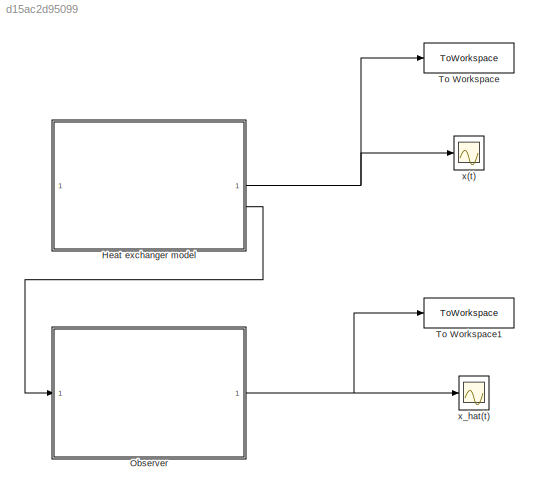
MODEL slx_d15ac2d95099
KIND model
CONFIG AbsTol = auto
CONFIG EnableMultiTasking = off
CONFIG FixedStep = 0.01
CONFIG MaxStep = auto
CONFIG MinStep = auto
CONFIG RelTol = 1e-3
CONFIG SampleTimeConstraint = Unconstrained
CONFIG SolverName = ode3
CONFIG StartTime = 0.0
CONFIG StopTime = 100
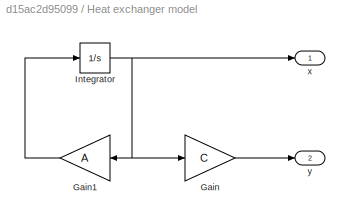
BLOCK [SubSystem] Heat exchanger model
BLOCK [Gain] Heat exchanger model/Gain
  Gain = C
  Multiplication = Matrix(K*u) (u vector)
BLOCK [Gain] Heat exchanger model/Gain1
  Gain = A
  Multiplication = Matrix(K*u) (u vector)
BLOCK [Integrator] Heat exchanger model/Integrator
  InitialCondition = randi(20,dim,1)
BLOCK [Outport] Heat exchanger model/x
BLOCK [Outport] Heat exchanger model/y
  Port = 2
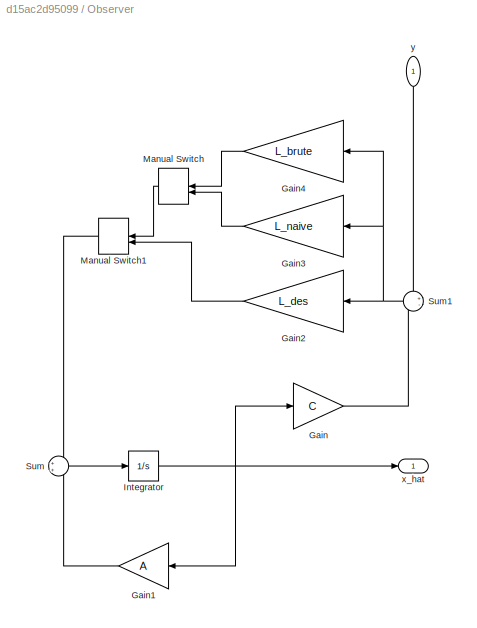
BLOCK [SubSystem] Observer
BLOCK [Gain] Observer/Gain
  Gain = C
  Multiplication = Matrix(K*u) (u vector)
BLOCK [Gain] Observer/Gain1
  Gain = A
  Multiplication = Matrix(K*u) (u vector)
BLOCK [Gain] Observer/Gain2
  Gain = L_des
  Multiplication = Matrix(K*u) (u vector)
BLOCK [Gain] Observer/Gain3
  Gain = L_naive
  Multiplication = Matrix(K*u) (u vector)
BLOCK [Gain] Observer/Gain4
  Gain = L_brute
  Multiplication = Matrix(K*u) (u vector)
BLOCK [Integrator] Observer/Integrator
  InitialCondition = zeros(dim,1)
BLOCK [ManualSwitch] Observer/Manual Switch
  CurrentSetting = 0
  NameLocation = top
BLOCK [ManualSwitch] Observer/Manual Switch1
  NameLocation = top
BLOCK [Sum] Observer/Sum
BLOCK [Sum] Observer/Sum1
  Inputs = +-
BLOCK [Outport] Observer/x_hat
BLOCK [Inport] Observer/y
  NameLocation = left
BLOCK [ToWorkspace] To Workspace
  Decimation = 100
  FixptAsFi = on
  MaxDataPoints = inf
  SampleTime = -1
  VariableName = x
BLOCK [ToWorkspace] To Workspace1
  Decimation = 100
  FixptAsFi = on
  MaxDataPoints = inf
  SampleTime = -1
  VariableName = x_hat
BLOCK [Scope] x(t)
  Floating = off
  NumInputPorts = 1
  ScopeSpecificationString = Simulink.scopes.TimeScopeBlockCfg('CurrentConfiguration', extmgr.ConfigurationSet(extmgr.Configuration('Core','General UI',true),extmgr.Configuration('Core','Source UI',true),extmgr.Configuration('Sources','WiredSimulink',true),extmgr.Configuration('Visuals','Time Domain',true,'SerializedDisplays',{struct('MinYLimReal','-1.25','MaxYLimReal','21.25','YLabelReal','','MinYLimMag','0.00000','MaxYLimMa...<+1601ch>
BLOCK [Scope] x_hat(t)
  Floating = off
  NumInputPorts = 1
  ScopeSpecificationString = Simulink.scopes.TimeScopeBlockCfg('CurrentConfiguration', extmgr.ConfigurationSet(extmgr.Configuration('Core','General UI',true),extmgr.Configuration('Core','Source UI',true),extmgr.Configuration('Sources','WiredSimulink',true,'DataLoggingVariableName','ScopeData1'),extmgr.Configuration('Visuals','Time Domain',true,'SerializedDisplays',{struct('MinYLimReal','-1.54174','MaxYLimReal','13.87562','YLa...<+1518ch>
LINE Heat exchanger model/Gain1:1 -> Heat exchanger model/Integrator:1
LINE Heat exchanger model/Gain:1 -> Heat exchanger model/y:1
NET Heat exchanger model/Integrator:1 -> Heat exchanger model/Gain1:1, Heat exchanger model/Gain:1, Heat exchanger model/x:1
NET Heat exchanger model:1 -> To Workspace:1, x(t):1
LINE Heat exchanger model:2 -> Observer:1
LINE Observer/Gain1:1 -> Observer/Sum:2
LINE Observer/Gain2:1 -> Observer/Manual Switch1:2
LINE Observer/Gain3:1 -> Observer/Manual Switch:2
LINE Observer/Gain4:1 -> Observer/Manual Switch:1
LINE Observer/Gain:1 -> Observer/Sum1:2
NET Observer/Integrator:1 -> Observer/Gain1:1, Observer/Gain:1, Observer/x_hat:1
LINE Observer/Manual Switch1:1 -> Observer/Sum:1
LINE Observer/Manual Switch:1 -> Observer/Manual Switch1:1
NET Observer/Sum1:1 -> Observer/Gain2:1, Observer/Gain3:1, Observer/Gain4:1
LINE Observer/Sum:1 -> Observer/Integrator:1
LINE Observer/y:1 -> Observer/Sum1:1
NET Observer:1 -> To Workspace1:1, x_hat(t):1
note: NET lines group one-source signal fan-out (src -> all destinations, sorted); 1:1 wires keep LINE
